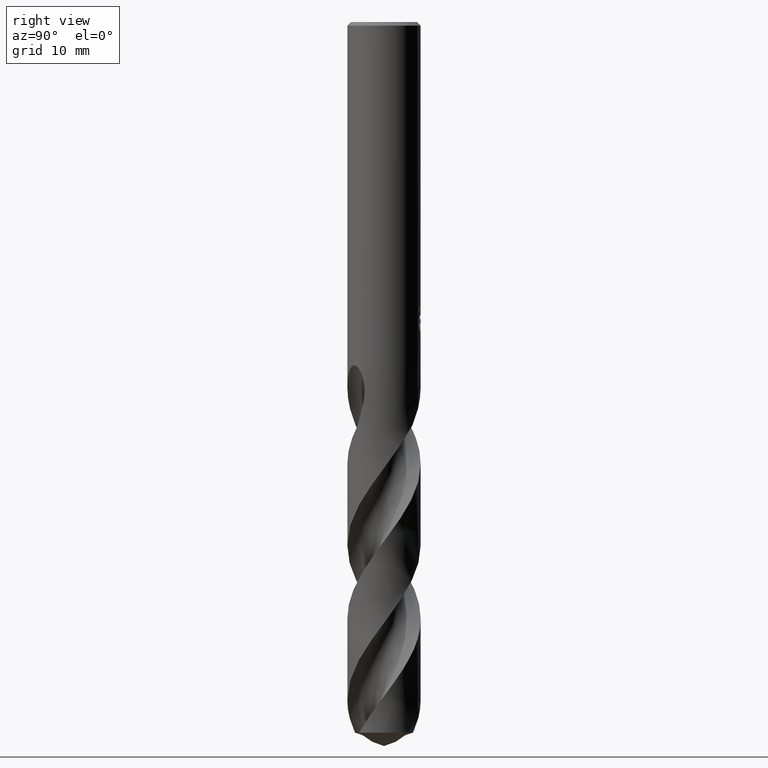
[diagram: clean part render]
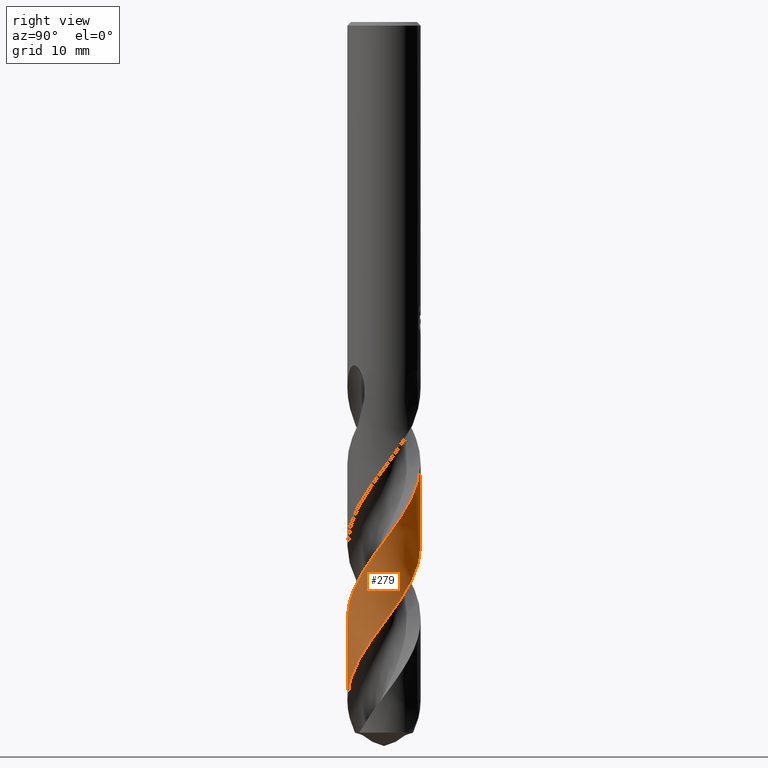
[diagram: same view with one face highlighted and labeled with its STEP entity id]
A machine part, right view. The second image highlights one B-rep face of the part: STEP entity #279.
In plain terms, the highlighted conical surface has half-angle 0 deg.
Its self-contained STEP definition (entity closure, byte-faithful):
#267=VERTEX_POINT('',#727);
#279=ADVANCED_FACE('',(#740),#741,.T.);
#369=EDGE_CURVE('',#673,#527,#837,.T.);
#419=EDGE_CURVE('',#673,#267,#889,.T.);
#435=VERTEX_POINT('',#907);
#527=VERTEX_POINT('',#1010);
#617=EDGE_CURVE('',#435,#527,#1108,.T.);
#649=EDGE_CURVE('',#435,#267,#1143,.T.);
#673=VERTEX_POINT('',#1169);
#727=CARTESIAN_POINT('',(-1.21893868216048E-014,-3.99996854104963,-65.1039542681433));
#740=FACE_OUTER_BOUND('',#1240,.T.);
#741=CONICAL_SURFACE('',#1241,3.99995,2.52882103254965E-006);
#837=B_SPLINE_CURVE_WITH_KNOTS('',3,(#1659,#1660,#1661,#1662,#1663,#1664,#1665,#1666,#1667,#1668,#1669,#1670,#1671,#1672,#1673,#1674,#1675,#1676,#1677,#1678,#1679,#1680,#1681,#1682,#1683,#1684,#1685,#1686,#1687,#1688,#1689,#1690,#1691,#1692,#1693,#1694,#1695,#1696,#1697,#1698,#1699,#1700,#1701,#1702,#1703,#1704,#1705,#1706,#1707,#1708,#1709,#1710,#1711,#1712,#1713,#1714,#1715,#1716,#1717,#1718,#1719,#1720,#1721,#1722,#1723,#1724,#1725,#1726,#1727,#1728,#1729,#1730,#1731,#1732,#1733,#1734),.UNSPECIFIED.,.F.,.F.,(4,2,2,2,2,2,2,2,2,2,2,2,2,2,2,2,2,2,2,2,2,2,2,2,2,2,2,2,2,2,2,2,2,2,2,2,2,4),(0.0,0.466993075148286,1.56085904181155,3.07977771318983,4.65076827145472,5.67854193360902,7.44799175725429,8.48582980228811,9.35767943266858,11.5467538142344,12.1132031263804,14.417521955391,14.6881141201877,16.8538456197284,17.7613122654109,19.6967075487883,20.7004624429811,22.3146852344594,23.2687747189614,24.9363892447133,25.7599779292434,27.9498842071209,28.5154185793703,30.7073525095157,31.2423332800286,33.442076748491,33.9887296771478,37.702920959675,38.2150786750297,39.0365205480189,39.8603336062619,40.4458257805383,40.7519291553112,41.0120003154966,41.2412726865701,41.5301891019866,42.1226019623575,43.0870979214801),.UNSPECIFIED.);
#889=LINE('',#1939,#1940);
#907=CARTESIAN_POINT('',(3.78439275153805E-011,3.99992578975759,-48.1983324470334));
#1010=CARTESIAN_POINT('',(-2.92011337268194E-013,3.99994831991984,-57.1076866303911));
#1108=LINE('',#4027,#4028);
#1143=B_SPLINE_CURVE_WITH_KNOTS('',3,(#4278,#4279,#4280,#4281,#4282,#4283,#4284,#4285,#4286,#4287,#4288,#4289,#4290,#4291,#4292,#4293,#4294,#4295,#4296,#4297,#4298,#4299,#4300,#4301,#4302,#4303,#4304,#4305,#4306,#4307,#4308,#4309,#4310,#4311,#4312,#4313,#4314,#4315,#4316,#4317,#4318,#4319,#4320,#4321,#4322,#4323,#4324,#4325,#4326,#4327,#4328,#4329,#4330,#4331,#4332,#4333,#4334,#4335,#4336,#4337,#4338,#4339,#4340,#4341,#4342,#4343,#4344,#4345,#4346,#4347,#4348,#4349,#4350,#4351,#4352,#4353,#4354,#4355,#4356,#4357,#4358,#4359,#4360,#4361,#4362,#4363,#4364,#4365,#4366,#4367,#4368,#4369,#4370,#4371,#4372,#4373,#4374,#4375),.UNSPECIFIED.,.F.,.F.,(4,2,2,2,2,2,2,2,2,2,2,2,2,2,2,2,2,2,2,2,2,2,2,2,2,2,2,2,2,2,2,2,2,2,2,2,2,2,2,2,2,2,2,2,2,2,2,2,4),(0.0,0.161558829926524,0.25757426708763,0.314032149895317,0.750439545360861,0.903068906429483,1.00078224562604,1.09256668861567,1.21560322549259,1.28829488357823,1.48824751036295,1.95261552915162,2.28666459986812,2.65204897585331,2.87296991135595,3.9339451522726,4.17820283785262,6.15037385824677,6.69090607213743,6.82440770414903,7.8989728509788,8.42998978095149,10.2811264246173,11.3955245199029,12.4640563125683,14.6228415283065,15.7025810133178,16.8170436932078,17.8868918192039,20.0419307658502,21.1220586287737,22.2364086457429,23.3070266021578,25.459043450061,26.5395672560597,27.653820683827,28.7251723239103,30.8741326125654,31.9550020319453,33.0690946090691,34.0868272402391,34.9875031787057,35.0775742960026,37.673259241777,37.7849759673882,39.5344579564725,39.9724193449182,40.6296306448547,41.2866180051252),.UNSPECIFIED.);
#1169=CARTESIAN_POINT('',(8.09910003246913E-012,-3.99999106807003,-74.0120660422402));
#1240=EDGE_LOOP('',(#5159,#5160,#5161,#5162));
#1241=AXIS2_PLACEMENT_3D('',#5163,#5164,#5165);
#1659=CARTESIAN_POINT('',(-2.44003030410643,-3.16958232501417,-77.5441190629352));
#1660=CARTESIAN_POINT('',(-2.36653943218278,-3.22615718932682,-77.41909998862));
#1661=CARTESIAN_POINT('',(-2.29109681931183,-3.28016388675594,-77.2942115285044));
#1662=CARTESIAN_POINT('',(-2.03286758279446,-3.45176005834521,-76.8764024681429));
#1663=CARTESIAN_POINT('',(-1.84218511839699,-3.55721865966488,-76.5828194805431));
#1664=CARTESIAN_POINT('',(-1.36772987432182,-3.77104902941733,-75.8838686907894));
#1665=CARTESIAN_POINT('',(-1.07882384472195,-3.86360090557134,-75.4812749264571));
#1666=CARTESIAN_POINT('',(-0.475974533362218,-3.98385147961287,-74.6544280908261));
#1667=CARTESIAN_POINT('',(-0.163245125045734,-4.00890235173543,-74.2313462920688));
#1668=CARTESIAN_POINT('',(0.354282392357964,-3.98953046200891,-73.536010155739));
#1669=CARTESIAN_POINT('',(0.558024811992571,-3.96616073812796,-73.262231516311));
#1670=CARTESIAN_POINT('',(1.10506788883261,-3.86043305349245,-72.5136809024347));
#1671=CARTESIAN_POINT('',(1.44072751075867,-3.74815208077645,-72.0377547604957));
#1672=CARTESIAN_POINT('',(1.94349026436057,-3.50221823943321,-71.2867859968702));
#1673=CARTESIAN_POINT('',(2.12190254993383,-3.39707124681849,-71.0103453221121));
#1674=CARTESIAN_POINT('',(2.43355346883196,-3.1792775270544,-70.4991490924699));
#1675=CARTESIAN_POINT('',(2.56892167044668,-3.07088930802768,-70.2646646470823));
#1676=CARTESIAN_POINT('',(3.01706190506668,-2.66185354972843,-69.4457283526137));
#1677=CARTESIAN_POINT('',(3.28766602103833,-2.31931034648457,-68.8716881287357));
#1678=CARTESIAN_POINT('',(3.55246014523061,-1.841855836092,-68.1351639283753));
#1679=CARTESIAN_POINT('',(3.60265698135378,-1.74162603129385,-67.9832964960658));
#1680=CARTESIAN_POINT('',(3.83572001433136,-1.22287509194081,-67.2158669078585));
#1681=CARTESIAN_POINT('',(3.94994759812654,-0.778045318450372,-66.6132901652099));
#1682=CARTESIAN_POINT('',(3.99117214994822,-0.270505714153656,-65.925144698073));
#1683=CARTESIAN_POINT('',(3.99442842378655,-0.217182115088803,-65.8527726150629));
#1684=CARTESIAN_POINT('',(4.01414540009559,0.264176060987026,-65.2015770291237));
#1685=CARTESIAN_POINT('',(3.96288823620994,0.692291551623742,-64.6339157536924));
#1686=CARTESIAN_POINT('',(3.79479359354523,1.27732961071964,-63.8143634585176));
#1687=CARTESIAN_POINT('',(3.73367173641758,1.44626193299723,-63.5711597535409));
#1688=CARTESIAN_POINT('',(3.50709409595252,1.96130950564172,-62.8130234918723));
#1689=CARTESIAN_POINT('',(3.30338152867672,2.28776733678422,-62.3049164661655));
#1690=CARTESIAN_POINT('',(2.9284041885554,2.73194703410919,-61.5213888270366));
#1691=CARTESIAN_POINT('',(2.78908096338837,2.87407604629689,-61.252237273913));
#1692=CARTESIAN_POINT('',(2.39903070639518,3.21663851910576,-60.553936793662));
#1693=CARTESIAN_POINT('',(2.13417567637753,3.3981221774218,-60.128057003741));
#1694=CARTESIAN_POINT('',(1.68304499724717,3.63355589517643,-59.4430098736708));
#1695=CARTESIAN_POINT('',(1.50973820833729,3.70891062620023,-59.1872166773107));
#1696=CARTESIAN_POINT('',(1.02016578453944,3.88174403455321,-58.4878978613247));
#1697=CARTESIAN_POINT('',(0.696298353513876,3.95271806615963,-58.0483037219411));
#1698=CARTESIAN_POINT('',(0.204713328917628,3.99803964666923,-57.3844324155601));
#1699=CARTESIAN_POINT('',(0.0417590514874879,4.00302847778836,-57.1639714298073));
#1700=CARTESIAN_POINT('',(-0.552406922914989,3.98510000380912,-56.3614493593831));
#1701=CARTESIAN_POINT('',(-0.979076084521999,3.9022519193712,-55.7896982340833));
#1702=CARTESIAN_POINT('',(-1.48901304130448,3.71413917018153,-55.0567879871774));
#1703=CARTESIAN_POINT('',(-1.59181016631804,3.67125216361922,-54.905898434482));
#1704=CARTESIAN_POINT('',(-2.08394572693071,3.44138415041336,-54.1726914900018));
#1705=CARTESIAN_POINT('',(-2.44279748107018,3.19664819219933,-53.6014189746885));
#1706=CARTESIAN_POINT('',(-2.83201400886412,2.82671108804017,-52.8770885441765));
#1707=CARTESIAN_POINT('',(-2.90531587936063,2.75130723749786,-52.7345665039194));
#1708=CARTESIAN_POINT('',(-3.26447789654264,2.35150042677078,-52.0085787094983));
#1709=CARTESIAN_POINT('',(-3.49944777315625,1.98512773776562,-51.4359727677321));
#1710=CARTESIAN_POINT('',(-3.71398904500096,1.48906522590048,-50.7083875053442));
#1711=CARTESIAN_POINT('',(-3.75262057519129,1.38881639640494,-50.5631805395433));
#1712=CARTESIAN_POINT('',(-4.02181293755795,0.596800710413922,-49.4348485174782));
#1713=CARTESIAN_POINT('',(-4.06267297585666,-0.1432667793182,-48.4811708986464));
#1714=CARTESIAN_POINT('',(-3.88678098324579,-0.949911893349955,-47.3640768686547));
#1715=CARTESIAN_POINT('',(-3.8618493145911,-1.04670091186072,-47.2280849796507));
#1716=CARTESIAN_POINT('',(-3.78716471925533,-1.29718291161859,-46.8751618698827));
#1717=CARTESIAN_POINT('',(-3.73155899958446,-1.44968295910734,-46.6585370216559));
#1718=CARTESIAN_POINT('',(-3.60058866682281,-1.74986295349734,-46.2268346263341));
#1719=CARTESIAN_POINT('',(-3.52634773279137,-1.89510205494165,-46.0163296892236));
#1720=CARTESIAN_POINT('',(-3.38272509934263,-2.13781503216381,-45.6312282169192));
#1721=CARTESIAN_POINT('',(-3.3202283699948,-2.2333186305512,-45.470368305817));
#1722=CARTESIAN_POINT('',(-3.22221264938645,-2.37066394586686,-45.2198689559426));
#1723=CARTESIAN_POINT('',(-3.19964072951217,-2.40058137984461,-45.1614801928599));
#1724=CARTESIAN_POINT('',(-3.16162621487717,-2.45036538638801,-45.0670806012796));
#1725=CARTESIAN_POINT('',(-3.1435766532575,-2.47349278801983,-45.0241735305459));
#1726=CARTESIAN_POINT('',(-3.10836648899329,-2.51755767757758,-44.9441475769958));
#1727=CARTESIAN_POINT('',(-3.09138391199728,-2.53839202101596,-44.9070139536361));
#1728=CARTESIAN_POINT('',(-3.05180964548351,-2.58592053609453,-44.8238100399286));
#1729=CARTESIAN_POINT('',(-3.02895080230337,-2.61267796364424,-44.7780178360415));
#1730=CARTESIAN_POINT('',(-2.95659132936607,-2.69505733363308,-44.6399440750886));
#1731=CARTESIAN_POINT('',(-2.90459909726043,-2.75117249280536,-44.5498720538232));
#1732=CARTESIAN_POINT('',(-2.75801590118876,-2.89989843845145,-44.3188872108996));
#1733=CARTESIAN_POINT('',(-2.65831829493388,-2.99213149262657,-44.183386918948));
#1734=CARTESIAN_POINT('',(-2.5488328128519,-3.08265693111187,-44.053));
#1939=CARTESIAN_POINT('',(4.9021983784512E-016,-3.99995,-57.7720595314676));
#1940=VECTOR('',#5281,1.0);
#4027=CARTESIAN_POINT('',(-4.89452999149243E-016,3.99995,-57.7720595314676));
#4028=VECTOR('',#5573,1.0);
#4278=CARTESIAN_POINT('',(-2.78024947561382,2.87567997457152,-44.053));
#4279=CARTESIAN_POINT('',(-2.75817371484374,2.89702329870632,-44.0972409629679));
#4280=CARTESIAN_POINT('',(-2.73579522852875,2.91816840511894,-44.1414505612769));
#4281=CARTESIAN_POINT('',(-2.69953309049718,2.95164109907122,-44.2118363999925));
#4282=CARTESIAN_POINT('',(-2.68590113317429,2.96405192398811,-44.238024744502));
#4283=CARTESIAN_POINT('',(-2.66403238165584,2.98368512688508,-44.2795732596625));
#4284=CARTESIAN_POINT('',(-2.6558920048843,2.99093369459777,-44.2949393715711));
#4285=CARTESIAN_POINT('',(-2.58440652252661,3.05406353889597,-44.4289820859781));
#4286=CARTESIAN_POINT('',(-2.51954588633743,3.10785724240888,-44.5444066507263));
#4287=CARTESIAN_POINT('',(-2.4268252370197,3.17974512405294,-44.7015181522677));
#4288=CARTESIAN_POINT('',(-2.40251596182642,3.19815456330031,-44.7420436965102));
#4289=CARTESIAN_POINT('',(-2.36209749049018,3.22803626224588,-44.8084810362362));
#4290=CARTESIAN_POINT('',(-2.34621073474342,3.23960201721947,-44.8343624905162));
#4291=CARTESIAN_POINT('',(-2.31517134032287,3.26184964279443,-44.8845375472859));
#4292=CARTESIAN_POINT('',(-2.30004806299475,3.27253148278917,-44.908807321165));
#4293=CARTESIAN_POINT('',(-2.26443716991563,3.29731446659767,-44.965607928864));
#4294=CARTESIAN_POINT('',(-2.2439029084955,3.3113229186966,-44.9980952700492));
#4295=CARTESIAN_POINT('',(-2.21102340371021,3.33330675297873,-45.0498133324286));
#4296=CARTESIAN_POINT('',(-2.19877265773505,3.3414004854749,-45.0690178238395));
#4297=CARTESIAN_POINT('',(-2.15267909376372,3.37149030672577,-45.1410930912127));
#4298=CARTESIAN_POINT('',(-2.11873949824163,3.39292397339741,-45.1938726508538));
#4299=CARTESIAN_POINT('',(-2.00373886654257,3.46312718482472,-45.3725475054628));
#4300=CARTESIAN_POINT('',(-1.92206307621293,3.50908733901179,-45.4986612860329));
#4301=CARTESIAN_POINT('',(-1.77991076513519,3.58270284358925,-45.7150981771553));
#4302=CARTESIAN_POINT('',(-1.71970487461767,3.61198703493799,-45.8058662510599));
#4303=CARTESIAN_POINT('',(-1.59221934523162,3.67008936759744,-45.99566667282));
#4304=CARTESIAN_POINT('',(-1.5246709663603,3.69866762850171,-46.0948760629299));
#4305=CARTESIAN_POINT('',(-1.4148476377222,3.74159688395817,-46.2536858454928));
#4306=CARTESIAN_POINT('',(-1.37312758223258,3.75710939708752,-46.3134711774391));
#4307=CARTESIAN_POINT('',(-1.12951516129784,3.84308314771865,-46.6604520281851));
#4308=CARTESIAN_POINT('',(-0.922631186670499,3.89791535852853,-46.9460077487401));
#4309=CARTESIAN_POINT('',(-0.664096854148268,3.94471557571354,-47.2995644242206));
#4310=CARTESIAN_POINT('',(-0.615594163628272,3.95257422506616,-47.3657741141791));
#4311=CARTESIAN_POINT('',(-0.174654800591868,4.01571784118006,-47.9661218242013));
#4312=CARTESIAN_POINT('',(0.224219278581789,4.01331265984234,-48.4964642685439));
#4313=CARTESIAN_POINT('',(0.723878671913754,3.93538564548246,-49.1766611645183));
#4314=CARTESIAN_POINT('',(0.830619234411794,3.91424671720821,-49.3229294210237));
#4315=CARTESIAN_POINT('',(0.962460883299275,3.88250218767791,-49.5054256839075));
#4316=CARTESIAN_POINT('',(0.98850922047279,3.87595205912709,-49.5415733080448));
#4317=CARTESIAN_POINT('',(1.22360170203754,3.81431164394495,-49.8686669035336));
#4318=CARTESIAN_POINT('',(1.42798267986456,3.74260562218857,-50.1590982360854));
#4319=CARTESIAN_POINT('',(1.72327674191979,3.61125977894926,-50.5936894541732));
#4320=CARTESIAN_POINT('',(1.81911848009762,3.56394098773232,-50.7373245190215));
#4321=CARTESIAN_POINT('',(2.23994932268546,3.33477925434298,-51.3824422634561));
#4322=CARTESIAN_POINT('',(2.54073537702869,3.11177529718345,-51.8816989232518));
#4323=CARTESIAN_POINT('',(2.96633030331183,2.69272303575997,-52.6843316544789));
#4324=CARTESIAN_POINT('',(3.11260430859856,2.52218754233143,-52.9853643980766));
#4325=CARTESIAN_POINT('',(3.36948795539713,2.16615988128594,-53.5766951793065));
#4326=CARTESIAN_POINT('',(3.48104447421573,1.98194929924137,-53.8658066619403));
#4327=CARTESIAN_POINT('',(3.77172385055328,1.40089624863249,-54.739619406401));
#4328=CARTESIAN_POINT('',(3.90147358976407,0.983207635393953,-55.3199586971232));
#4329=CARTESIAN_POINT('',(3.9915639248281,0.337900353029915,-56.1971048440105));
#4330=CARTESIAN_POINT('',(4.00403977151962,0.120550300289417,-56.4888726242859));
#4331=CARTESIAN_POINT('',(3.99334029630537,-0.321251983145672,-57.0827921653206));
#4332=CARTESIAN_POINT('',(3.96903151140552,-0.544637620056552,-57.3838923800089));
#4333=CARTESIAN_POINT('',(3.88504235568089,-0.97588753909845,-57.9756107105263));
#4334=CARTESIAN_POINT('',(3.8269068769084,-1.18355064113845,-58.2650524443988));
#4335=CARTESIAN_POINT('',(3.60198681117369,-1.7926470225642,-59.1382110186743));
#4336=CARTESIAN_POINT('',(3.38648370578262,-2.17241424043319,-59.717772786451));
#4337=CARTESIAN_POINT('',(2.97801374183092,-2.67923928177174,-60.5940460952006));
#4338=CARTESIAN_POINT('',(2.82800322888081,-2.83714540619057,-60.8859127633801));
#4339=CARTESIAN_POINT('',(2.49846104546009,-3.13173236704978,-61.4799307839387));
#4340=CARTESIAN_POINT('',(2.3189427527516,-3.26686840008677,-61.781071419336));
#4341=CARTESIAN_POINT('',(1.94687887477026,-3.50081891523515,-62.3729884382619));
#4342=CARTESIAN_POINT('',(1.75551592597779,-3.60060208449697,-62.6626244133214));
#4343=CARTESIAN_POINT('',(1.15779491150235,-3.85317979324511,-63.5351817290868));
#4344=CARTESIAN_POINT('',(0.733981517519715,-3.95582076075697,-64.1140896929354));
#4345=CARTESIAN_POINT('',(0.0853809221503704,-4.00496317184569,-64.9896691582675));
#4346=CARTESIAN_POINT('',(-0.132510631482636,-4.00369397144452,-65.2816336701808));
#4347=CARTESIAN_POINT('',(-0.572920562432821,-3.96508540353747,-65.8757525243622));
#4348=CARTESIAN_POINT('',(-0.794307262975184,-3.92671409075741,-66.1769383527411));
#4349=CARTESIAN_POINT('',(-1.21967291175278,-3.81557642519595,-66.7690427664199));
#4350=CARTESIAN_POINT('',(-1.42354836086705,-3.74430767746492,-67.0588612750391));
#4351=CARTESIAN_POINT('',(-2.01639761847998,-3.4815518366179,-67.9307898273211));
#4352=CARTESIAN_POINT('',(-2.38084615844147,-3.24320843701508,-68.5090186885034));
#4353=CARTESIAN_POINT('',(-2.86040861573038,-2.80449784930348,-69.3838677921546));
#4354=CARTESIAN_POINT('',(-3.00873100123435,-2.64476560332435,-69.6759128271524));
#4355=CARTESIAN_POINT('',(-3.28216798825108,-2.29730097081359,-70.2700927488787));
#4356=CARTESIAN_POINT('',(-3.40576903776458,-2.10969664229455,-70.5712959549835));
#4357=CARTESIAN_POINT('',(-3.61084585720443,-1.73308233187959,-71.1488421536584));
#4358=CARTESIAN_POINT('',(-3.69485158968014,-1.54594456493432,-71.4241949894124));
#4359=CARTESIAN_POINT('',(-3.82552551019508,-1.18242667582808,-71.943642771832));
#4360=CARTESIAN_POINT('',(-3.87520257236406,-1.00776990115576,-72.1870228482783));
#4361=CARTESIAN_POINT('',(-3.91662289513176,-0.812583046778337,-72.4552499377924));
#4362=CARTESIAN_POINT('',(-3.92026699130203,-0.794816469805149,-72.4796325088339));
#4363=CARTESIAN_POINT('',(-4.02532687692477,-0.264298447336553,-73.2069305061663));
#4364=CARTESIAN_POINT('',(-4.02540324274292,0.263748495827421,-73.9046151103729));
#4365=CARTESIAN_POINT('',(-3.91947460739473,0.798853334294951,-74.6378175488803));
#4366=CARTESIAN_POINT('',(-3.91491864516787,0.820889926485504,-74.6680670249284));
#4367=CARTESIAN_POINT('',(-3.83591468422238,1.18739663931694,-75.1722907787545));
#4368=CARTESIAN_POINT('',(-3.71640854531572,1.52070055742924,-75.6459555485665));
#4369=CARTESIAN_POINT('',(-3.51432759645786,1.91239704348132,-76.2387610962863));
#4370=CARTESIAN_POINT('',(-3.47127490574557,1.98947748117598,-76.357388445069));
#4371=CARTESIAN_POINT('',(-3.35730068142693,2.17854660093385,-76.6541114929873));
#4372=CARTESIAN_POINT('',(-3.28332049089993,2.28852244197653,-76.8319844361671));
#4373=CARTESIAN_POINT('',(-3.12476558054435,2.50067265581708,-77.188110792353));
#4374=CARTESIAN_POINT('',(-3.04028644301901,2.60272628850368,-77.3660796337743));
#4375=CARTESIAN_POINT('',(-2.9509044611237,2.70040050017033,-77.5441190629351));
#5159=ORIENTED_EDGE('',*,*,#617,.F.);
#5160=ORIENTED_EDGE('',*,*,#649,.T.);
#5161=ORIENTED_EDGE('',*,*,#419,.F.);
#5162=ORIENTED_EDGE('',*,*,#369,.T.);
#5163=CARTESIAN_POINT('',(0.0,0.0,-57.7720595314676));
#5164=DIRECTION('',(0.0,-0.0,-1.0));
#5165=DIRECTION('',(0.0,1.0,0.0));
#5281=DIRECTION('',(-3.09681030413666E-022,2.52882103254695E-006,0.999999999996803));
#5573=DIRECTION('',(-3.09681030413666E-022,2.52882103254695E-006,-0.999999999996803));